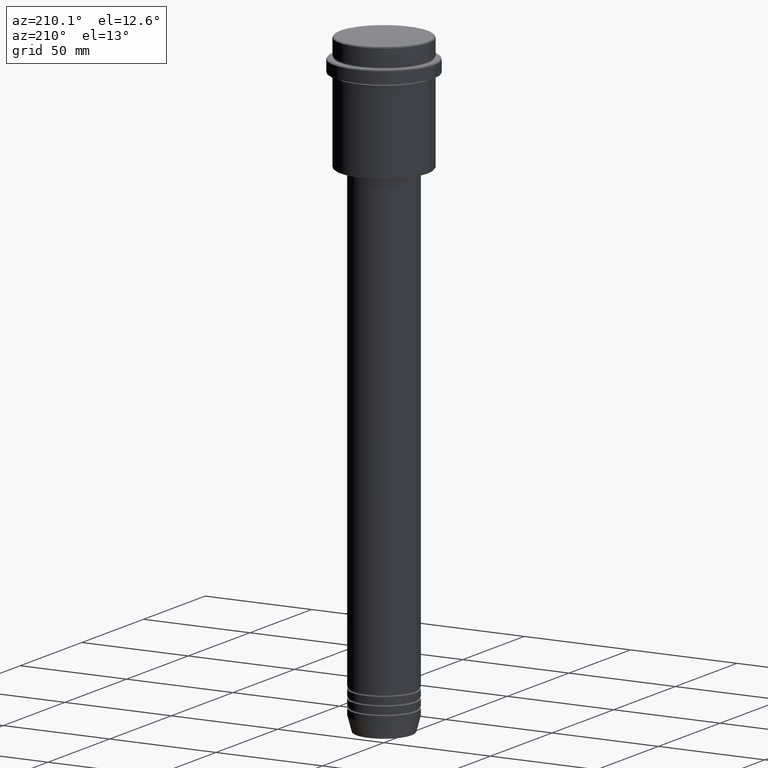
[diagram: clean part render]
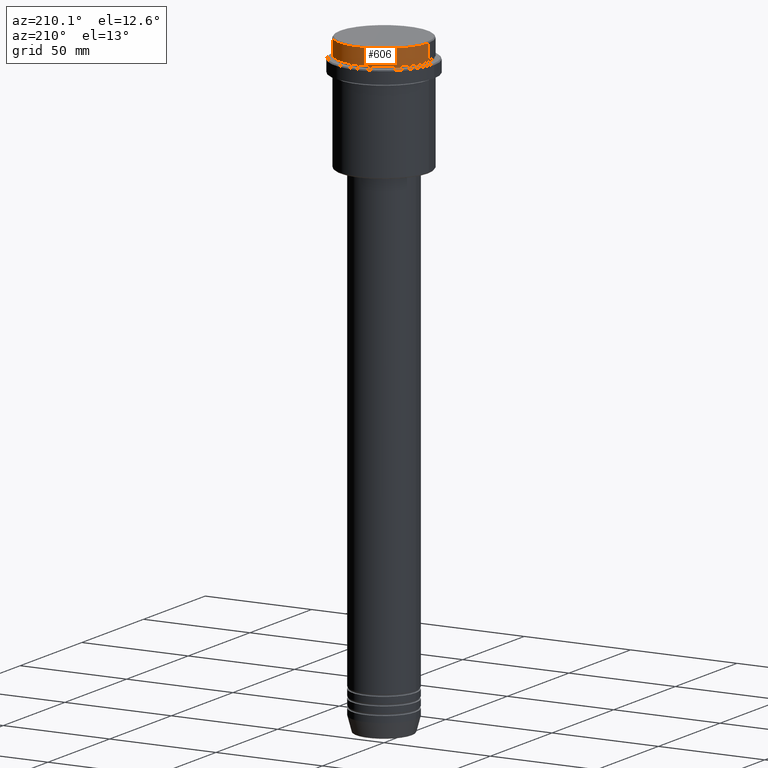
[diagram: same view with one face highlighted and labeled with its STEP entity id]
A machine part, auxiliary view. The second image highlights one B-rep face of the part: STEP entity #606.
In plain terms, the highlighted cylindrical surface (partial cylindrical patch) has radius 21 mm, axis along (-0, -0, 1).
Its self-contained STEP definition (entity closure, byte-faithful):
#36 = VECTOR ( 'NONE', #401, 1000.000000000000000 ) ;
#169 = DIRECTION ( 'NONE',  ( -0.000000000000000000, -0.000000000000000000, 1.000000000000000000 ) ) ;
#181 = ORIENTED_EDGE ( 'NONE', *, *, #766, .T. ) ;
#186 = ORIENTED_EDGE ( 'NONE', *, *, #270, .T. ) ;
#234 = DIRECTION ( 'NONE',  ( -0.000000000000000000, -0.000000000000000000, 1.000000000000000000 ) ) ;
#270 = EDGE_CURVE ( 'NONE', #1302, #1378, #1375, .T. ) ;
#292 = EDGE_CURVE ( 'NONE', #737, #1302, #928, .T. ) ;
#357 = CARTESIAN_POINT ( 'NONE',  ( 0.000000000000000000, 0.000000000000000000, 0.000000000000000000 ) ) ;
#373 = CARTESIAN_POINT ( 'NONE',  ( -20.99999999999999645, 2.571758278209441267E-15, -7.999999999999998224 ) ) ;
#374 = CARTESIAN_POINT ( 'NONE',  ( -20.99999999999999645, 2.571758278209441267E-15, 0.000000000000000000 ) ) ;
#401 = DIRECTION ( 'NONE',  ( -0.000000000000000000, -0.000000000000000000, 1.000000000000000000 ) ) ;
#427 = CARTESIAN_POINT ( 'NONE',  ( -20.99999999999999645, 2.571758278209441267E-15, -0.5000000000000905942 ) ) ;
#436 = CIRCLE ( 'NONE', #593, 20.99999999999999645 ) ;
#456 = CARTESIAN_POINT ( 'NONE',  ( 20.99999999999999645, 0.000000000000000000, -7.999999999999998224 ) ) ;
#479 = DIRECTION ( 'NONE',  ( 0.000000000000000000, 0.000000000000000000, -1.000000000000000000 ) ) ;
#521 = AXIS2_PLACEMENT_3D ( 'NONE', #1143, #479, #1032 ) ;
#563 = ORIENTED_EDGE ( 'NONE', *, *, #292, .T. ) ;
#584 = CARTESIAN_POINT ( 'NONE',  ( 0.000000000000000000, 0.000000000000000000, -7.999999999999998224 ) ) ;
#591 = VECTOR ( 'NONE', #169, 1000.000000000000000 ) ;
#593 = AXIS2_PLACEMENT_3D ( 'NONE', #584, #1118, #815 ) ;
#606 = ADVANCED_FACE ( 'NONE', ( #767 ), #885, .T. ) ;
#649 = VERTEX_POINT ( 'NONE', #456 ) ;
#715 = LINE ( 'NONE', #948, #36 ) ;
#737 = VERTEX_POINT ( 'NONE', #373 ) ;
#766 = EDGE_CURVE ( 'NONE', #649, #737, #436, .T. ) ;
#767 = FACE_OUTER_BOUND ( 'NONE', #1152, .T. ) ;
#815 = DIRECTION ( 'NONE',  ( 1.000000000000000000, 0.000000000000000000, 0.000000000000000000 ) ) ;
#885 = CYLINDRICAL_SURFACE ( 'NONE', #1159, 20.99999999999999645 ) ;
#928 = LINE ( 'NONE', #374, #591 ) ;
#948 = CARTESIAN_POINT ( 'NONE',  ( 20.99999999999999645, 0.000000000000000000, 0.000000000000000000 ) ) ;
#980 = DIRECTION ( 'NONE',  ( 1.000000000000000000, 0.000000000000000000, 0.000000000000000000 ) ) ;
#1032 = DIRECTION ( 'NONE',  ( 1.000000000000000000, 0.000000000000000000, 0.000000000000000000 ) ) ;
#1054 = ORIENTED_EDGE ( 'NONE', *, *, #1214, .F. ) ;
#1118 = DIRECTION ( 'NONE',  ( -0.000000000000000000, -0.000000000000000000, 1.000000000000000000 ) ) ;
#1143 = CARTESIAN_POINT ( 'NONE',  ( 0.000000000000000000, 0.000000000000000000, -0.5000000000000905942 ) ) ;
#1152 = EDGE_LOOP ( 'NONE', ( #181, #563, #186, #1054 ) ) ;
#1159 = AXIS2_PLACEMENT_3D ( 'NONE', #357, #234, #980 ) ;
#1214 = EDGE_CURVE ( 'NONE', #649, #1378, #715, .T. ) ;
#1285 = CARTESIAN_POINT ( 'NONE',  ( 20.99999999999999645, 0.000000000000000000, -0.5000000000000905942 ) ) ;
#1302 = VERTEX_POINT ( 'NONE', #427 ) ;
#1375 = CIRCLE ( 'NONE', #521, 20.99999999999999645 ) ;
#1378 = VERTEX_POINT ( 'NONE', #1285 ) ;